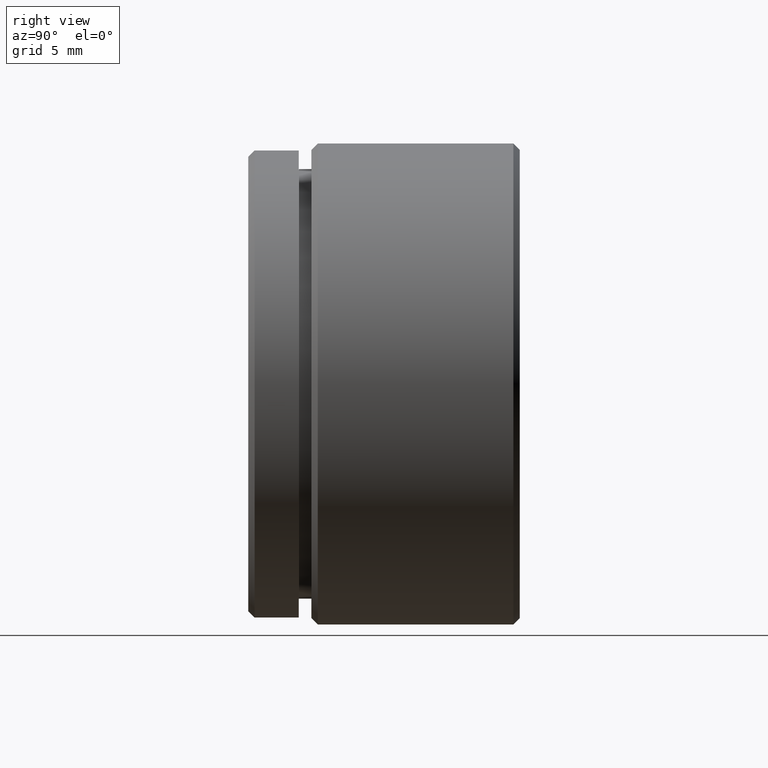
[diagram: clean part render]
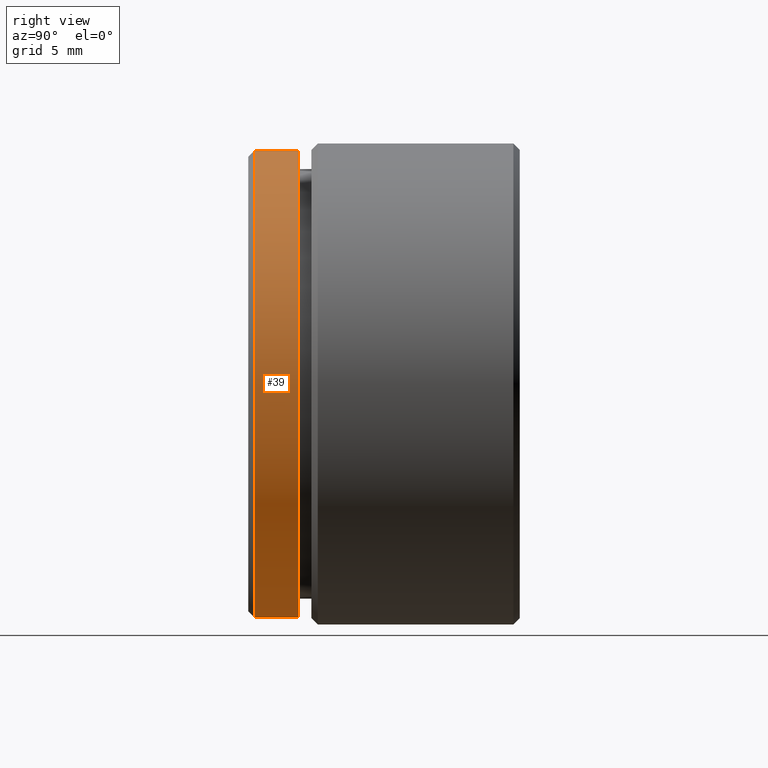
[diagram: same view with one face highlighted and labeled with its STEP entity id]
A machine part, right view. The second image highlights one B-rep face of the part: STEP entity #39.
In plain terms, the highlighted cylindrical surface (partial cylindrical patch) has radius 18.5 mm, axis along (-0, -1, -0).
Its self-contained STEP definition (entity closure, byte-faithful):
#20 = VECTOR ( 'NONE', #1009, 1000.000000000000000 ) ;
#39 = ADVANCED_FACE ( 'NONE', ( #1073 ), #149, .T. ) ;
#45 = CARTESIAN_POINT ( 'NONE',  ( 0.0000000000000000000, 0.4999999999999979500, 0.0000000000000000000 ) ) ;
#77 = CARTESIAN_POINT ( 'NONE',  ( 2.265596578422603000E-015, 0.4999999999999979500, -18.50000000000000000 ) ) ;
#85 = CARTESIAN_POINT ( 'NONE',  ( 0.0000000000000000000, 0.0000000000000000000, 0.0000000000000000000 ) ) ;
#89 = CIRCLE ( 'NONE', #1065, 18.50000000000000000 ) ;
#113 = ORIENTED_EDGE ( 'NONE', *, *, #502, .F. ) ;
#120 = DIRECTION ( 'NONE',  ( -0.0000000000000000000, -1.000000000000000000, -0.0000000000000000000 ) ) ;
#122 = CARTESIAN_POINT ( 'NONE',  ( 0.0000000000000000000, 4.000000000000000000, -18.50000000000000000 ) ) ;
#149 = CYLINDRICAL_SURFACE ( 'NONE', #847, 18.50000000000000000 ) ;
#205 = EDGE_CURVE ( 'NONE', #830, #514, #699, .T. ) ;
#213 = ORIENTED_EDGE ( 'NONE', *, *, #650, .T. ) ;
#252 = LINE ( 'NONE', #1084, #20 ) ;
#258 = DIRECTION ( 'NONE',  ( -0.0000000000000000000, -1.000000000000000000, -0.0000000000000000000 ) ) ;
#262 = VERTEX_POINT ( 'NONE', #122 ) ;
#275 = DIRECTION ( 'NONE',  ( -0.0000000000000000000, -1.000000000000000000, -0.0000000000000000000 ) ) ;
#422 = ORIENTED_EDGE ( 'NONE', *, *, #527, .T. ) ;
#477 = VECTOR ( 'NONE', #120, 1000.000000000000000 ) ;
#484 = DIRECTION ( 'NONE',  ( 0.0000000000000000000, 0.0000000000000000000, -1.000000000000000000 ) ) ;
#493 = DIRECTION ( 'NONE',  ( -0.0000000000000000000, -1.000000000000000000, -0.0000000000000000000 ) ) ;
#496 = CARTESIAN_POINT ( 'NONE',  ( 0.0000000000000000000, 4.000000000000000000, 0.0000000000000000000 ) ) ;
#502 = EDGE_CURVE ( 'NONE', #262, #830, #672, .T. ) ;
#514 = VERTEX_POINT ( 'NONE', #663 ) ;
#527 = EDGE_CURVE ( 'NONE', #997, #514, #252, .T. ) ;
#650 = EDGE_CURVE ( 'NONE', #262, #997, #89, .T. ) ;
#663 = CARTESIAN_POINT ( 'NONE',  ( 0.0000000000000000000, 0.4999999999999979500, 18.50000000000000000 ) ) ;
#672 = LINE ( 'NONE', #718, #477 ) ;
#699 = CIRCLE ( 'NONE', #736, 18.50000000000000000 ) ;
#718 = CARTESIAN_POINT ( 'NONE',  ( 0.0000000000000000000, 0.0000000000000000000, -18.50000000000000000 ) ) ;
#736 = AXIS2_PLACEMENT_3D ( 'NONE', #45, #258, #1072 ) ;
#830 = VERTEX_POINT ( 'NONE', #77 ) ;
#847 = AXIS2_PLACEMENT_3D ( 'NONE', #85, #275, #1005 ) ;
#887 = CARTESIAN_POINT ( 'NONE',  ( 2.265596578422603400E-015, 4.000000000000000000, 18.50000000000000000 ) ) ;
#997 = VERTEX_POINT ( 'NONE', #887 ) ;
#1005 = DIRECTION ( 'NONE',  ( 0.0000000000000000000, 0.0000000000000000000, -1.000000000000000000 ) ) ;
#1009 = DIRECTION ( 'NONE',  ( -0.0000000000000000000, -1.000000000000000000, -0.0000000000000000000 ) ) ;
#1037 = ORIENTED_EDGE ( 'NONE', *, *, #205, .F. ) ;
#1065 = AXIS2_PLACEMENT_3D ( 'NONE', #496, #493, #484 ) ;
#1072 = DIRECTION ( 'NONE',  ( 0.0000000000000000000, 0.0000000000000000000, -1.000000000000000000 ) ) ;
#1073 = FACE_OUTER_BOUND ( 'NONE', #1075, .T. ) ;
#1075 = EDGE_LOOP ( 'NONE', ( #213, #422, #1037, #113 ) ) ;
#1084 = CARTESIAN_POINT ( 'NONE',  ( 2.265596578422603400E-015, 0.0000000000000000000, 18.50000000000000000 ) ) ;